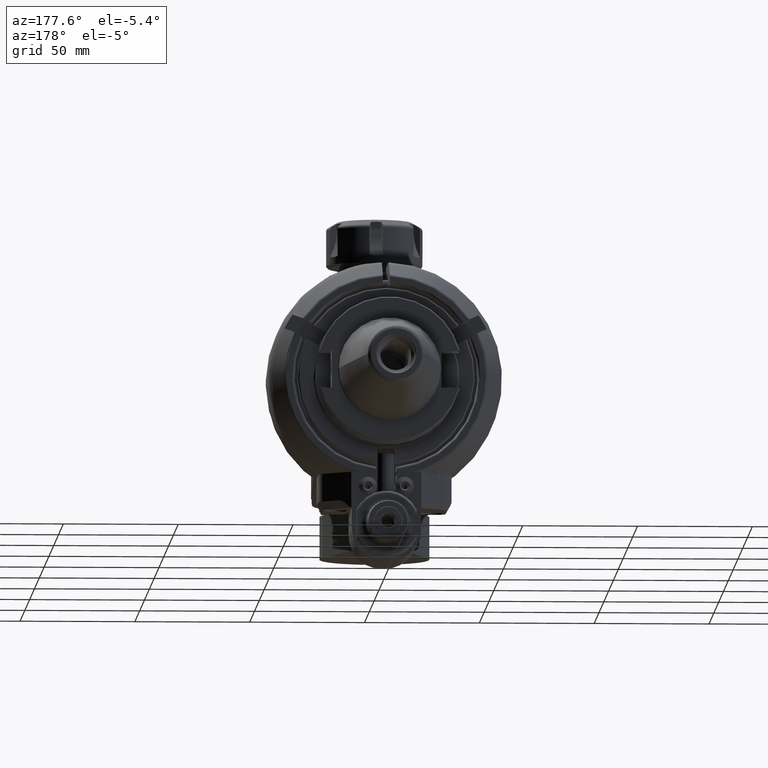
[diagram: clean part render]
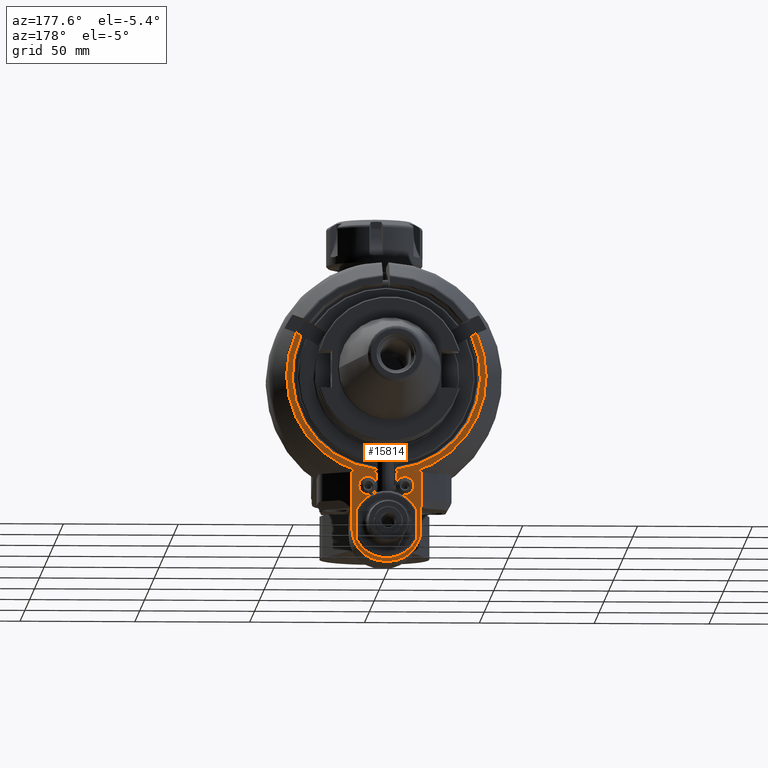
[diagram: same view with one face highlighted and labeled with its STEP entity id]
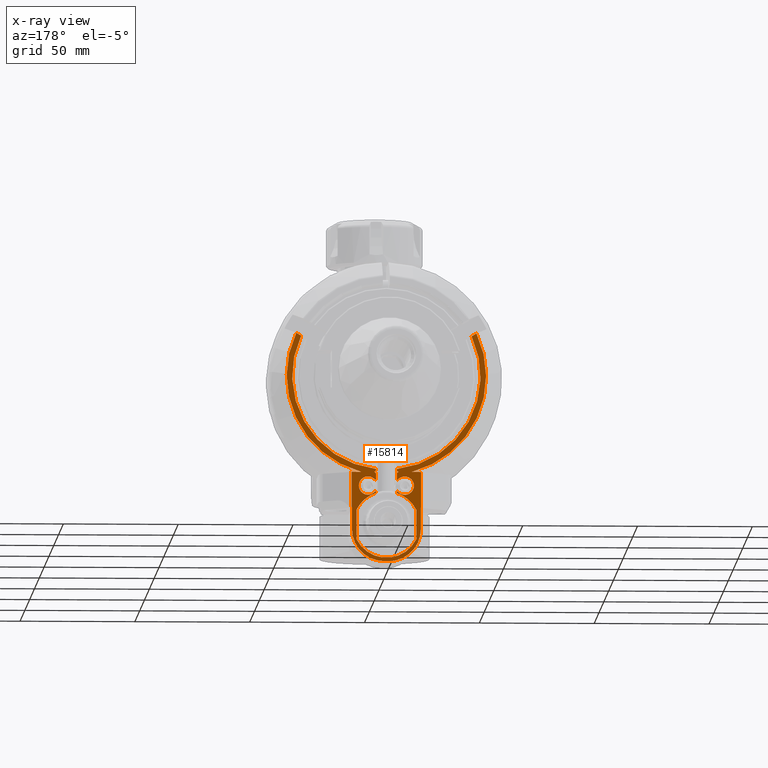
[diagram: x-ray of the same camera — body ghosted, the highlighted face saturated]
A machine part, auxiliary view. The second image highlights one B-rep face of the part: STEP entity #15814.
The next image is the same camera in x-ray: the body ghosted, the highlighted face saturated — about 0% of this face is hidden behind the body in this view.
In plain terms, the highlighted planar face has unit normal (0, 1, 0).
Its self-contained STEP definition (entity closure, byte-faithful):
#1557=CIRCLE('',#17243,14.5);
#1558=CIRCLE('',#17244,14.5);
#1559=CIRCLE('',#17245,14.5);
#1560=CIRCLE('',#17246,4.);
#1561=CIRCLE('',#17247,1.);
#1562=CIRCLE('',#17248,1.);
#1563=CIRCLE('',#17249,41.);
#1564=CIRCLE('',#17250,43.42264973081);
#1565=CIRCLE('',#17251,14.);
#1566=CIRCLE('',#17252,14.);
#1567=CIRCLE('',#17253,43.42264973081);
#1568=CIRCLE('',#17254,41.);
#1569=CIRCLE('',#17255,1.);
#1570=CIRCLE('',#17256,1.);
#1571=CIRCLE('',#17257,4.);
#2416=FACE_OUTER_BOUND('',#3398,.T.);
#3398=EDGE_LOOP('',(#13041,#13042,#13043,#13044,#13045,#13046,#13047,#13048,
#13049,#13050,#13051,#13052,#13053,#13054,#13055,#13056,#13057,#13058,#13059,
#13060,#13061,#13062,#13063,#13064,#13065,#13066,#13067,#13068,#13069,#13070,
#13071,#13072,#13073,#13074,#13075,#13076,#13077,#13078,#13079,#13080,#13081));
#4564=LINE('',#27120,#5723);
#4568=LINE('',#27132,#5727);
#4570=LINE('',#27139,#5729);
#4571=LINE('',#27143,#5730);
#4572=LINE('',#27147,#5731);
#4573=LINE('',#27149,#5732);
#4574=LINE('',#27153,#5733);
#4575=LINE('',#27155,#5734);
#4576=LINE('',#27161,#5735);
#4577=LINE('',#27165,#5736);
#4578=LINE('',#27169,#5737);
#4579=LINE('',#27171,#5738);
#4580=LINE('',#27173,#5739);
#4581=LINE('',#27175,#5740);
#4582=LINE('',#27177,#5741);
#4583=LINE('',#27179,#5742);
#4584=LINE('',#27181,#5743);
#4585=LINE('',#27185,#5744);
#4586=LINE('',#27188,#5745);
#4587=LINE('',#27190,#5746);
#4588=LINE('',#27194,#5747);
#4589=LINE('',#27198,#5748);
#4590=LINE('',#27204,#5749);
#4591=LINE('',#27206,#5750);
#4592=LINE('',#27210,#5751);
#4593=LINE('',#27211,#5752);
#5723=VECTOR('',#20667,0.1128483482606);
#5727=VECTOR('',#20681,9.5);
#5729=VECTOR('',#20687,12.84523257867);
#5730=VECTOR('',#20690,12.84523257867);
#5731=VECTOR('',#20693,0.7159512479098);
#5732=VECTOR('',#20694,0.3775010008008);
#5733=VECTOR('',#20697,0.3775010008008);
#5734=VECTOR('',#20698,2.5);
#5735=VECTOR('',#20703,0.247699451442);
#5736=VECTOR('',#20706,2.43090617210213);
#5737=VECTOR('',#20709,4.088942069421);
#5738=VECTOR('',#20710,15.5);
#5739=VECTOR('',#20711,0.1128483482606);
#5740=VECTOR('',#20712,0.7629679276389);
#5741=VECTOR('',#20713,10.);
#5742=VECTOR('',#20714,10.);
#5743=VECTOR('',#20715,8.70839142844);
#5744=VECTOR('',#20718,2.);
#5745=VECTOR('',#20721,15.5);
#5746=VECTOR('',#20722,4.088942069421);
#5747=VECTOR('',#20725,2.43091427895297);
#5748=VECTOR('',#20728,0.2476994514422);
#5749=VECTOR('',#20733,2.5);
#5750=VECTOR('',#20734,0.3775010008008);
#5751=VECTOR('',#20737,0.3775010008008);
#5752=VECTOR('',#20738,0.7159512479098);
#7196=VERTEX_POINT('',#27117);
#7197=VERTEX_POINT('',#27119);
#7200=VERTEX_POINT('',#27131);
#7201=VERTEX_POINT('',#27135);
#7202=VERTEX_POINT('',#27136);
#7203=VERTEX_POINT('',#27138);
#7204=VERTEX_POINT('',#27140);
#7205=VERTEX_POINT('',#27142);
#7206=VERTEX_POINT('',#27144);
#7207=VERTEX_POINT('',#27146);
#7208=VERTEX_POINT('',#27148);
#7209=VERTEX_POINT('',#27150);
#7210=VERTEX_POINT('',#27152);
#7211=VERTEX_POINT('',#27154);
#7212=VERTEX_POINT('',#27156);
#7213=VERTEX_POINT('',#27158);
#7214=VERTEX_POINT('',#27160);
#7215=VERTEX_POINT('',#27162);
#7216=VERTEX_POINT('',#27164);
#7217=VERTEX_POINT('',#27166);
#7218=VERTEX_POINT('',#27168);
#7219=VERTEX_POINT('',#27170);
#7220=VERTEX_POINT('',#27172);
#7221=VERTEX_POINT('',#27174);
#7222=VERTEX_POINT('',#27176);
#7223=VERTEX_POINT('',#27178);
#7224=VERTEX_POINT('',#27180);
#7225=VERTEX_POINT('',#27182);
#7226=VERTEX_POINT('',#27184);
#7227=VERTEX_POINT('',#27187);
#7228=VERTEX_POINT('',#27189);
#7229=VERTEX_POINT('',#27191);
#7230=VERTEX_POINT('',#27193);
#7231=VERTEX_POINT('',#27195);
#7232=VERTEX_POINT('',#27197);
#7233=VERTEX_POINT('',#27199);
#7234=VERTEX_POINT('',#27201);
#7235=VERTEX_POINT('',#27203);
#7236=VERTEX_POINT('',#27205);
#7237=VERTEX_POINT('',#27207);
#7238=VERTEX_POINT('',#27209);
#9243=EDGE_CURVE('',#7197,#7196,#4564,.T.);
#9249=EDGE_CURVE('',#7200,#7197,#4568,.T.);
#9251=EDGE_CURVE('',#7201,#7202,#1557,.T.);
#9252=EDGE_CURVE('',#7203,#7201,#4570,.T.);
#9253=EDGE_CURVE('',#7204,#7203,#1558,.T.);
#9254=EDGE_CURVE('',#7205,#7204,#4571,.T.);
#9255=EDGE_CURVE('',#7206,#7205,#1559,.T.);
#9256=EDGE_CURVE('',#7206,#7207,#4572,.T.);
#9257=EDGE_CURVE('',#7208,#7207,#4573,.T.);
#9258=EDGE_CURVE('',#7208,#7209,#1560,.T.);
#9259=EDGE_CURVE('',#7210,#7209,#4574,.T.);
#9260=EDGE_CURVE('',#7210,#7211,#4575,.T.);
#9261=EDGE_CURVE('',#7211,#7212,#1561,.T.);
#9262=EDGE_CURVE('',#7212,#7213,#1562,.T.);
#9263=EDGE_CURVE('',#7214,#7213,#4576,.T.);
#9264=EDGE_CURVE('',#7214,#7215,#1563,.T.);
#9265=EDGE_CURVE('',#7215,#7216,#4577,.T.);
#9266=EDGE_CURVE('',#7216,#7217,#1564,.T.);
#9267=EDGE_CURVE('',#7217,#7218,#4578,.T.);
#9268=EDGE_CURVE('',#7219,#7218,#4579,.T.);
#9269=EDGE_CURVE('',#7219,#7220,#4580,.T.);
#9270=EDGE_CURVE('',#7221,#7220,#4581,.T.);
#9271=EDGE_CURVE('',#7221,#7222,#4582,.T.);
#9272=EDGE_CURVE('',#7222,#7223,#4583,.T.);
#9273=EDGE_CURVE('',#7224,#7223,#4584,.T.);
#9274=EDGE_CURVE('',#7224,#7225,#1565,.T.);
#9275=EDGE_CURVE('',#7225,#7226,#4585,.T.);
#9276=EDGE_CURVE('',#7226,#7200,#1566,.T.);
#9277=EDGE_CURVE('',#7227,#7196,#4586,.T.);
#9278=EDGE_CURVE('',#7228,#7227,#4587,.T.);
#9279=EDGE_CURVE('',#7228,#7229,#1567,.T.);
#9280=EDGE_CURVE('',#7229,#7230,#4588,.T.);
#9281=EDGE_CURVE('',#7230,#7231,#1568,.T.);
#9282=EDGE_CURVE('',#7231,#7232,#4589,.T.);
#9283=EDGE_CURVE('',#7232,#7233,#1569,.T.);
#9284=EDGE_CURVE('',#7233,#7234,#1570,.T.);
#9285=EDGE_CURVE('',#7234,#7235,#4590,.T.);
#9286=EDGE_CURVE('',#7236,#7235,#4591,.T.);
#9287=EDGE_CURVE('',#7236,#7237,#1571,.T.);
#9288=EDGE_CURVE('',#7238,#7237,#4592,.T.);
#9289=EDGE_CURVE('',#7238,#7202,#4593,.T.);
#13041=ORIENTED_EDGE('',*,*,#9251,.F.);
#13042=ORIENTED_EDGE('',*,*,#9252,.F.);
#13043=ORIENTED_EDGE('',*,*,#9253,.F.);
#13044=ORIENTED_EDGE('',*,*,#9254,.F.);
#13045=ORIENTED_EDGE('',*,*,#9255,.F.);
#13046=ORIENTED_EDGE('',*,*,#9256,.T.);
#13047=ORIENTED_EDGE('',*,*,#9257,.F.);
#13048=ORIENTED_EDGE('',*,*,#9258,.T.);
#13049=ORIENTED_EDGE('',*,*,#9259,.F.);
#13050=ORIENTED_EDGE('',*,*,#9260,.T.);
#13051=ORIENTED_EDGE('',*,*,#9261,.T.);
#13052=ORIENTED_EDGE('',*,*,#9262,.T.);
#13053=ORIENTED_EDGE('',*,*,#9263,.F.);
#13054=ORIENTED_EDGE('',*,*,#9264,.T.);
#13055=ORIENTED_EDGE('',*,*,#9265,.T.);
#13056=ORIENTED_EDGE('',*,*,#9266,.T.);
#13057=ORIENTED_EDGE('',*,*,#9267,.T.);
#13058=ORIENTED_EDGE('',*,*,#9268,.F.);
#13059=ORIENTED_EDGE('',*,*,#9269,.T.);
#13060=ORIENTED_EDGE('',*,*,#9270,.F.);
#13061=ORIENTED_EDGE('',*,*,#9271,.T.);
#13062=ORIENTED_EDGE('',*,*,#9272,.T.);
#13063=ORIENTED_EDGE('',*,*,#9273,.F.);
#13064=ORIENTED_EDGE('',*,*,#9274,.T.);
#13065=ORIENTED_EDGE('',*,*,#9275,.T.);
#13066=ORIENTED_EDGE('',*,*,#9276,.T.);
#13067=ORIENTED_EDGE('',*,*,#9249,.T.);
#13068=ORIENTED_EDGE('',*,*,#9243,.T.);
#13069=ORIENTED_EDGE('',*,*,#9277,.F.);
#13070=ORIENTED_EDGE('',*,*,#9278,.F.);
#13071=ORIENTED_EDGE('',*,*,#9279,.T.);
#13072=ORIENTED_EDGE('',*,*,#9280,.T.);
#13073=ORIENTED_EDGE('',*,*,#9281,.T.);
#13074=ORIENTED_EDGE('',*,*,#9282,.T.);
#13075=ORIENTED_EDGE('',*,*,#9283,.T.);
#13076=ORIENTED_EDGE('',*,*,#9284,.T.);
#13077=ORIENTED_EDGE('',*,*,#9285,.T.);
#13078=ORIENTED_EDGE('',*,*,#9286,.F.);
#13079=ORIENTED_EDGE('',*,*,#9287,.T.);
#13080=ORIENTED_EDGE('',*,*,#9288,.F.);
#13081=ORIENTED_EDGE('',*,*,#9289,.T.);
#15144=PLANE('',#17242);
#15814=ADVANCED_FACE('',(#2416),#15144,.T.);
#17242=AXIS2_PLACEMENT_3D('',#27134,#20683,#20684);
#17243=AXIS2_PLACEMENT_3D('',#27137,#20685,#20686);
#17244=AXIS2_PLACEMENT_3D('',#27141,#20688,#20689);
#17245=AXIS2_PLACEMENT_3D('',#27145,#20691,#20692);
#17246=AXIS2_PLACEMENT_3D('',#27151,#20695,#20696);
#17247=AXIS2_PLACEMENT_3D('',#27157,#20699,#20700);
#17248=AXIS2_PLACEMENT_3D('',#27159,#20701,#20702);
#17249=AXIS2_PLACEMENT_3D('',#27163,#20704,#20705);
#17250=AXIS2_PLACEMENT_3D('',#27167,#20707,#20708);
#17251=AXIS2_PLACEMENT_3D('',#27183,#20716,#20717);
#17252=AXIS2_PLACEMENT_3D('',#27186,#20719,#20720);
#17253=AXIS2_PLACEMENT_3D('',#27192,#20723,#20724);
#17254=AXIS2_PLACEMENT_3D('',#27196,#20726,#20727);
#17255=AXIS2_PLACEMENT_3D('',#27200,#20729,#20730);
#17256=AXIS2_PLACEMENT_3D('',#27202,#20731,#20732);
#17257=AXIS2_PLACEMENT_3D('',#27208,#20735,#20736);
#20667=DIRECTION('',(-1.,0.,0.));
#20681=DIRECTION('',(0.,0.,1.));
#20683=DIRECTION('center_axis',(0.,1.,0.));
#20684=DIRECTION('ref_axis',(0.,0.,1.));
#20685=DIRECTION('center_axis',(0.,1.,0.));
#20686=DIRECTION('ref_axis',(-0.896551724137936,0.,0.442939054436718));
#20687=DIRECTION('',(0.,0.,1.));
#20688=DIRECTION('center_axis',(0.,1.,0.));
#20689=DIRECTION('ref_axis',(0.896551724137936,0.,-0.442939054436718));
#20690=DIRECTION('',(0.,0.,-1.));
#20691=DIRECTION('center_axis',(0.,1.,0.));
#20692=DIRECTION('ref_axis',(0.310344827586198,0.,0.950624051868294));
#20693=DIRECTION('',(0.,0.,1.));
#20694=DIRECTION('',(-1.,0.,0.));
#20695=DIRECTION('center_axis',(0.,-1.,0.));
#20696=DIRECTION('ref_axis',(-0.7806247497998,0.,-0.625));
#20697=DIRECTION('',(1.,0.,0.));
#20698=DIRECTION('',(0.,0.,1.));
#20699=DIRECTION('center_axis',(0.,1.,0.));
#20700=DIRECTION('ref_axis',(-1.,0.,0.));
#20701=DIRECTION('center_axis',(0.,1.,0.));
#20702=DIRECTION('ref_axis',(0.,0.,-1.));
#20703=DIRECTION('',(-3.585710079411E-14,0.,-1.));
#20704=DIRECTION('center_axis',(0.,-1.,0.));
#20705=DIRECTION('ref_axis',(0.109756097561003,0.,-0.993958549964826));
#20706=DIRECTION('',(0.866025403777353,0.,0.500000000012273));
#20707=DIRECTION('center_axis',(0.,1.,0.));
#20708=DIRECTION('ref_axis',(0.90350914504947,0.,0.428568809891686));
#20709=DIRECTION('',(1.,0.,0.));
#20710=DIRECTION('',(0.,0.,1.));
#20711=DIRECTION('',(-1.,0.,0.));
#20712=DIRECTION('',(-3.073496587321E-9,-8.940363043052E-13,1.));
#20713=DIRECTION('',(-0.511857066365632,-1.95794482512341E-8,-0.859070627836599));
#20714=DIRECTION('',(0.98864812341285,0.,-0.150249419540475));
#20715=DIRECTION('',(0.,0.,1.));
#20716=DIRECTION('center_axis',(0.,1.,0.));
#20717=DIRECTION('ref_axis',(1.,0.,0.));
#20718=DIRECTION('',(-1.,0.,0.));
#20719=DIRECTION('center_axis',(0.,1.,0.));
#20720=DIRECTION('ref_axis',(0.,0.,-1.));
#20721=DIRECTION('',(0.,0.,-1.));
#20722=DIRECTION('',(-1.,0.,0.));
#20723=DIRECTION('center_axis',(0.,1.,0.));
#20724=DIRECTION('ref_axis',(-0.253874564246497,0.,-0.967237150666087));
#20725=DIRECTION('',(0.866025403777911,0.,-0.500000000011306));
#20726=DIRECTION('center_axis',(0.,-1.,0.));
#20727=DIRECTION('ref_axis',(-0.905547054761271,0.,0.424245838651586));
#20728=DIRECTION('',(0.,0.,-1.));
#20729=DIRECTION('center_axis',(0.,1.,0.));
#20730=DIRECTION('ref_axis',(1.,0.,0.));
#20731=DIRECTION('center_axis',(0.,1.,0.));
#20732=DIRECTION('ref_axis',(0.,0.,1.));
#20733=DIRECTION('',(0.,0.,-1.));
#20734=DIRECTION('',(1.,0.,0.));
#20735=DIRECTION('center_axis',(0.,-1.,0.));
#20736=DIRECTION('ref_axis',(0.7806247497998,0.,0.625));
#20737=DIRECTION('',(-1.,0.,0.));
#20738=DIRECTION('',(0.,0.,-1.));
#27117=CARTESIAN_POINT('',(-15.11284834826,39.5,-57.5));
#27119=CARTESIAN_POINT('',(-15.,39.5,-57.5));
#27120=CARTESIAN_POINT('',(-15.,39.5,-57.5));
#27131=CARTESIAN_POINT('',(-15.,39.5,-67.));
#27132=CARTESIAN_POINT('',(-15.,39.5,-67.));
#27134=CARTESIAN_POINT('Origin',(0.,39.5,40.75));
#27135=CARTESIAN_POINT('',(-13.,39.5,-58.57738371067));
#27136=CARTESIAN_POINT('',(-4.5,39.5,-51.21595124791));
#27137=CARTESIAN_POINT('Origin',(0.,39.5,-65.));
#27138=CARTESIAN_POINT('',(-13.,39.5,-71.42261628933));
#27139=CARTESIAN_POINT('',(-13.,39.5,-71.42261628933));
#27140=CARTESIAN_POINT('',(13.,39.5,-71.42261628933));
#27141=CARTESIAN_POINT('Origin',(0.,39.5,-65.));
#27142=CARTESIAN_POINT('',(13.,39.5,-58.57738371067));
#27143=CARTESIAN_POINT('',(13.,39.5,-58.57738371067));
#27144=CARTESIAN_POINT('',(4.5,39.5,-51.21595124791));
#27145=CARTESIAN_POINT('Origin',(0.,39.5,-65.));
#27146=CARTESIAN_POINT('',(4.5,39.5,-50.5));
#27147=CARTESIAN_POINT('',(4.5,39.5,-51.21595124791));
#27148=CARTESIAN_POINT('',(4.877501000801,39.5,-50.5));
#27149=CARTESIAN_POINT('',(4.877501000801,39.5,-50.5));
#27150=CARTESIAN_POINT('',(4.877501000801,39.5,-45.5));
#27151=CARTESIAN_POINT('Origin',(8.,39.5,-48.));
#27152=CARTESIAN_POINT('',(4.5,39.5,-45.5));
#27153=CARTESIAN_POINT('',(4.5,39.5,-45.5));
#27154=CARTESIAN_POINT('',(4.5,39.5,-43.));
#27155=CARTESIAN_POINT('',(4.5,39.5,-45.5));
#27156=CARTESIAN_POINT('',(5.5,39.5,-42.));
#27157=CARTESIAN_POINT('Origin',(5.5,39.5,-43.));
#27158=CARTESIAN_POINT('',(4.5,39.5,-41.));
#27159=CARTESIAN_POINT('Origin',(5.5,39.5,-41.));
#27160=CARTESIAN_POINT('',(4.5,39.5,-40.75230054856));
#27161=CARTESIAN_POINT('',(4.5,39.5,-40.75230054856));
#27162=CARTESIAN_POINT('',(37.12742924521,39.5,17.39407938471));
#27163=CARTESIAN_POINT('Origin',(0.,39.5,0.));
#27164=CARTESIAN_POINT('',(39.232761099929,39.4999999999798,18.6095932939219));
#27165=CARTESIAN_POINT('',(37.12742924521,39.5,17.39407938471));
#27166=CARTESIAN_POINT('',(11.02390627884,39.5,-42.));
#27167=CARTESIAN_POINT('Origin',(0.,39.5,0.));
#27168=CARTESIAN_POINT('',(15.11284834826,39.5,-42.));
#27169=CARTESIAN_POINT('',(11.02390627884,39.5,-42.));
#27170=CARTESIAN_POINT('',(15.11284834826,39.5,-57.5));
#27171=CARTESIAN_POINT('',(15.11284834826,39.5,-57.5));
#27172=CARTESIAN_POINT('',(15.,39.5,-57.5));
#27173=CARTESIAN_POINT('',(15.11284834826,39.5,-57.5));
#27174=CARTESIAN_POINT('',(15.0000000030541,39.5000000001996,-58.2629679283757));
#27175=CARTESIAN_POINT('',(15.00000000234,39.5,-58.26296792764));
#27176=CARTESIAN_POINT('',(14.98435207752,39.5,-58.28923048454));
#27177=CARTESIAN_POINT('',(15.0000000046865,39.5000000005987,-58.2629679290382));
#27178=CARTESIAN_POINT('',(15.,39.5,-58.29160857156));
#27179=CARTESIAN_POINT('',(14.98435207752,39.5,-58.28923048454));
#27180=CARTESIAN_POINT('',(15.,39.5,-67.));
#27181=CARTESIAN_POINT('',(15.,39.5,-67.));
#27182=CARTESIAN_POINT('',(1.,39.5,-81.));
#27183=CARTESIAN_POINT('Origin',(1.,39.5,-67.));
#27184=CARTESIAN_POINT('',(-1.,39.5,-81.));
#27185=CARTESIAN_POINT('',(1.,39.5,-81.));
#27186=CARTESIAN_POINT('Origin',(-1.,39.5,-67.));
#27187=CARTESIAN_POINT('',(-15.11284834826,39.5,-42.));
#27188=CARTESIAN_POINT('',(-15.11284834826,39.5,-42.));
#27189=CARTESIAN_POINT('',(-11.02390627884,39.5,-42.));
#27190=CARTESIAN_POINT('',(-11.02390627884,39.5,-42.));
#27191=CARTESIAN_POINT('',(-39.2327611022003,39.4999999999814,18.6095932954975));
#27192=CARTESIAN_POINT('Origin',(0.,39.5,0.));
#27193=CARTESIAN_POINT('',(-37.12742924521,39.5,17.39407938471));
#27194=CARTESIAN_POINT('',(-39.23266276519,39.5,18.60953652422));
#27195=CARTESIAN_POINT('',(-4.5,39.5,-40.75230054856));
#27196=CARTESIAN_POINT('Origin',(0.,39.5,0.));
#27197=CARTESIAN_POINT('',(-4.5,39.5,-41.));
#27198=CARTESIAN_POINT('',(-4.5,39.5,-40.75230054856));
#27199=CARTESIAN_POINT('',(-5.5,39.5,-42.));
#27200=CARTESIAN_POINT('Origin',(-5.5,39.5,-41.));
#27201=CARTESIAN_POINT('',(-4.5,39.5,-43.));
#27202=CARTESIAN_POINT('Origin',(-5.5,39.5,-43.));
#27203=CARTESIAN_POINT('',(-4.5,39.5,-45.5));
#27204=CARTESIAN_POINT('',(-4.5,39.5,-43.));
#27205=CARTESIAN_POINT('',(-4.877501000801,39.5,-45.5));
#27206=CARTESIAN_POINT('',(-4.877501000801,39.5,-45.5));
#27207=CARTESIAN_POINT('',(-4.877501000801,39.5,-50.5));
#27208=CARTESIAN_POINT('Origin',(-8.,39.5,-48.));
#27209=CARTESIAN_POINT('',(-4.5,39.5,-50.5));
#27210=CARTESIAN_POINT('',(-4.5,39.5,-50.5));
#27211=CARTESIAN_POINT('',(-4.5,39.5,-50.5));